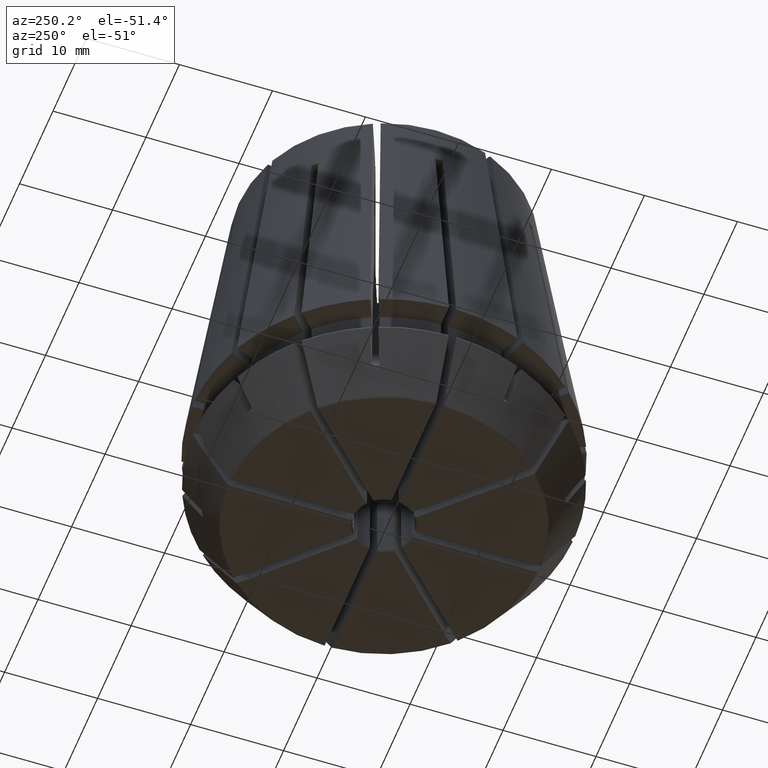
[diagram: clean part render]
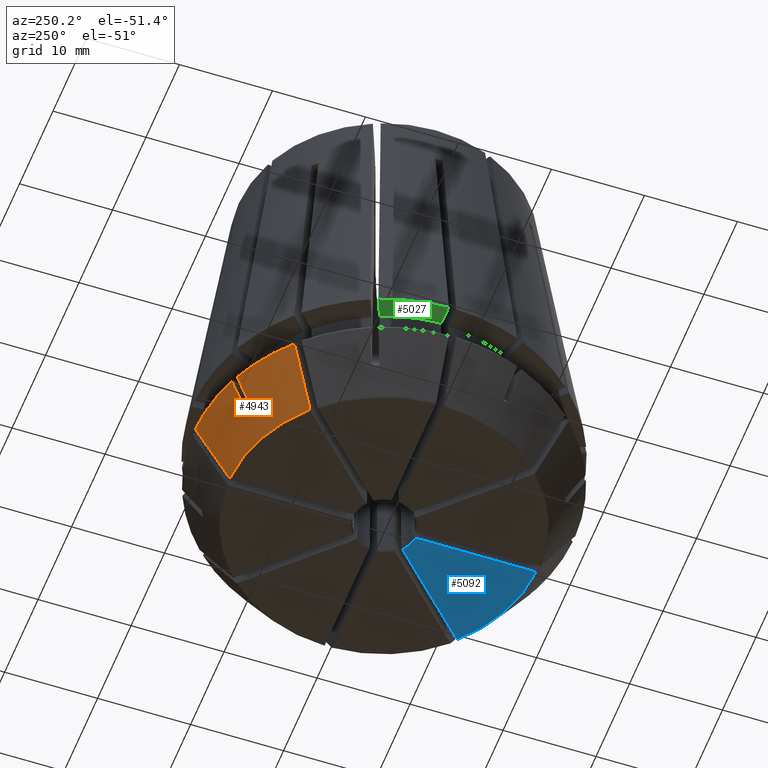
[diagram: same view with three faces highlighted in distinct colors, each labeled with its STEP entity id]
A machine part, auxiliary view with three faces highlighted in distinct colors.
Their STEP definitions:

[orange] entity #4943 — the highlighted conical surface has half-angle 30 deg.
#773=CONICAL_SURFACE('',#5318,20.4464101615138,0.523598775598298);
#902=CIRCLE('',#5319,20.4464101615138);
#903=CIRCLE('',#5320,16.7307168993214);
#904=CIRCLE('',#5321,20.4464101615138);
#905=CIRCLE('',#5322,17.4902963361193);
#1280=ORIENTED_EDGE('',*,*,#2882,.F.);
#1281=ORIENTED_EDGE('',*,*,#2883,.F.);
#1282=ORIENTED_EDGE('',*,*,#2884,.T.);
#1283=ORIENTED_EDGE('',*,*,#2885,.T.);
#1284=ORIENTED_EDGE('',*,*,#2886,.F.);
#1285=ORIENTED_EDGE('',*,*,#2887,.F.);
#1286=ORIENTED_EDGE('',*,*,#2888,.T.);
#1287=ORIENTED_EDGE('',*,*,#2889,.T.);
#2882=EDGE_CURVE('',#3676,#3677,#4110,.T.);
#2883=EDGE_CURVE('',#3678,#3676,#902,.T.);
#2884=EDGE_CURVE('',#3678,#3679,#4111,.T.);
#2885=EDGE_CURVE('',#3679,#3680,#903,.T.);
#2886=EDGE_CURVE('',#3681,#3680,#4112,.T.);
#2887=EDGE_CURVE('',#3682,#3681,#904,.T.);
#2888=EDGE_CURVE('',#3682,#3683,#4113,.T.);
#2889=EDGE_CURVE('',#3683,#3677,#905,.T.);
#3676=VERTEX_POINT('',#7680);
#3677=VERTEX_POINT('',#7681);
#3678=VERTEX_POINT('',#7683);
#3679=VERTEX_POINT('',#7688);
#3680=VERTEX_POINT('',#7690);
#3681=VERTEX_POINT('',#7695);
#3682=VERTEX_POINT('',#7697);
#3683=VERTEX_POINT('',#7702);
#4110=B_SPLINE_CURVE_WITH_KNOTS('',3,(#7676,#7677,#7678,#7679),
 .UNSPECIFIED.,.F.,.F.,(4,4),(2.30951159840683E-7,0.00410730167754539),
 .UNSPECIFIED.);
#4111=B_SPLINE_CURVE_WITH_KNOTS('',3,(#7684,#7685,#7686,#7687),
 .UNSPECIFIED.,.F.,.F.,(4,4),(0.0202823541054414,0.0277141753030989),
 .UNSPECIFIED.);
#4112=B_SPLINE_CURVE_WITH_KNOTS('',3,(#7691,#7692,#7693,#7694),
 .UNSPECIFIED.,.F.,.F.,(4,4),(2.30951159842324E-7,0.00743205214663291),
 .UNSPECIFIED.);
#4113=B_SPLINE_CURVE_WITH_KNOTS('',3,(#7698,#7699,#7700,#7701),
 .UNSPECIFIED.,.F.,.F.,(4,4),(2.30951159835909E-7,0.00410730167754542),
 .UNSPECIFIED.);
#4327=EDGE_LOOP('',(#1280,#1281,#1282,#1283,#1284,#1285,#1286,#1287));
#4599=FACE_BOUND('',#4327,.T.);
#4943=ADVANCED_FACE('',(#4599),#773,.T.);
#5318=AXIS2_PLACEMENT_3D('',#7675,#6039,#6040);
#5319=AXIS2_PLACEMENT_3D('',#7682,#6041,#6042);
#5320=AXIS2_PLACEMENT_3D('',#7689,#6043,#6044);
#5321=AXIS2_PLACEMENT_3D('',#7696,#6045,#6046);
#5322=AXIS2_PLACEMENT_3D('',#7703,#6047,#6048);
#6039=DIRECTION('',(0.,0.,1.));
#6040=DIRECTION('',(1.,0.,0.));
#6041=DIRECTION('',(0.,0.,1.));
#6042=DIRECTION('',(1.,0.,0.));
#6043=DIRECTION('',(0.,0.,1.));
#6044=DIRECTION('',(1.,0.,0.));
#6045=DIRECTION('',(0.,0.,1.));
#6046=DIRECTION('',(1.,0.,0.));
#6047=DIRECTION('',(0.345585721741283,-0.834317736390489,-0.429516499884239));
#6048=DIRECTION('',(-0.185454820349281,0.387965812228631,-0.902822816587505));
#7675=CARTESIAN_POINT('',(0.,0.,6.76076951545866));
#7676=CARTESIAN_POINT('',(-7.45345315091234,19.0394780553462,6.76076951545866));
#7677=CARTESIAN_POINT('',(-7.19146422672322,18.4069808413772,5.57521705847866));
#7678=CARTESIAN_POINT('',(-6.92947157226647,17.7744746217456,4.3896702302907));
#7679=CARTESIAN_POINT('',(-6.66747378072609,17.141956000097,3.20413115424839));
#7680=CARTESIAN_POINT('',(-7.45345315091234,19.0394780553462,6.76076951545866));
#7681=CARTESIAN_POINT('',(-6.66747378072609,17.1419560000971,3.20413115424838));
#7682=CARTESIAN_POINT('',(0.,0.,6.76076951545866));
#7683=CARTESIAN_POINT('',(-0.4,20.4424971197957,6.76076951545866));
#7684=CARTESIAN_POINT('',(-0.4,20.4424971197956,6.76076951545866));
#7685=CARTESIAN_POINT('',(-0.4,19.2036824438802,4.615490198568));
#7686=CARTESIAN_POINT('',(-0.4,17.964837040327,2.47022861926208));
#7687=CARTESIAN_POINT('',(-0.4,16.7259345916796,0.324999999995274));
#7688=CARTESIAN_POINT('',(-0.4,16.7259345916796,0.324999999995282));
#7689=CARTESIAN_POINT('',(0.,0.,0.325000000000006));
#7690=CARTESIAN_POINT('',(-11.5441790589863,12.1098644839362,0.325000000000011));
#7691=CARTESIAN_POINT('',(-14.1721856253193,14.7378710502686,6.76076951545866));
#7692=CARTESIAN_POINT('',(-13.2962113677997,13.8618967927489,4.61549019967884));
#7693=CARTESIAN_POINT('',(-12.4202153842376,12.9859008091869,2.4702286255941));
#7694=CARTESIAN_POINT('',(-11.5441790589866,12.1098644839358,0.325000000000007));
#7695=CARTESIAN_POINT('',(-14.1721856253193,14.7378710502686,6.76076951545866));
#7696=CARTESIAN_POINT('',(0.,0.,6.76076951545866));
#7697=CARTESIAN_POINT('',(-8.19255677692138,18.7333313094541,6.76076951545866));
#7698=CARTESIAN_POINT('',(-8.1925567769214,18.7333313094541,6.76076951545867));
#7699=CARTESIAN_POINT('',(-7.93056785273228,18.1008340954852,5.57521705847866));
#7700=CARTESIAN_POINT('',(-7.66857519827552,17.4683278758535,4.38967023029069));
#7701=CARTESIAN_POINT('',(-7.40657740673514,16.8358092542049,3.20413115424837));
#7702=CARTESIAN_POINT('',(-7.40657740673512,16.835809254205,3.20413115424838));
#7703=CARTESIAN_POINT('',(-4.16291764186443,10.050172230043,18.9947697553738));

[blue] entity #5092 — the highlighted planar face has unit normal (0, 0, -1).
#95=PLANE('',#5616);
#361=LINE('',#9038,#657);
#380=LINE('',#9119,#676);
#657=VECTOR('',#6740,1000.);
#676=VECTOR('',#6769,1000.);
#851=CIRCLE('',#5244,16.5142105483752);
#857=CIRCLE('',#5253,3.575);
#2297=ORIENTED_EDGE('',*,*,#2788,.F.);
#2298=ORIENTED_EDGE('',*,*,#3355,.T.);
#2299=ORIENTED_EDGE('',*,*,#2797,.F.);
#2300=ORIENTED_EDGE('',*,*,#3384,.F.);
#2788=EDGE_CURVE('',#3590,#3591,#851,.T.);
#2797=EDGE_CURVE('',#3598,#3599,#857,.T.);
#3355=EDGE_CURVE('',#3590,#3599,#361,.T.);
#3384=EDGE_CURVE('',#3591,#3598,#380,.T.);
#3590=VERTEX_POINT('',#7403);
#3591=VERTEX_POINT('',#7405);
#3598=VERTEX_POINT('',#7427);
#3599=VERTEX_POINT('',#7428);
#4476=EDGE_LOOP('',(#2297,#2298,#2299,#2300));
#4748=FACE_BOUND('',#4476,.T.);
#5092=ADVANCED_FACE('',(#4748),#95,.T.);
#5244=AXIS2_PLACEMENT_3D('',#7404,#5871,#5872);
#5253=AXIS2_PLACEMENT_3D('',#7426,#5891,#5892);
#5616=AXIS2_PLACEMENT_3D('',#9298,#6893,#6894);
#5871=DIRECTION('',(0.,0.,1.));
#5872=DIRECTION('',(1.,0.,0.));
#5891=DIRECTION('',(0.,0.,-1.));
#5892=DIRECTION('',(-1.,0.,0.));
#6740=DIRECTION('',(-1.22464679914735E-16,1.,0.));
#6769=DIRECTION('',(-0.707106781186548,0.707106781186548,0.));
#6893=DIRECTION('',(0.,0.,-1.));
#6894=DIRECTION('',(-1.,0.,0.));
#7403=CARTESIAN_POINT('',(0.399999999999998,-16.5093655249397,0.200000000000003));
#7404=CARTESIAN_POINT('',(0.,0.,0.200000000000006));
#7405=CARTESIAN_POINT('',(11.3910416032976,-11.9567270282469,0.200000000000003));
#7426=CARTESIAN_POINT('',(0.,0.,0.2));
#7427=CARTESIAN_POINT('',(2.22919082631408,-2.79487625126335,0.2));
#7428=CARTESIAN_POINT('',(0.399999999999996,-3.55255189969128,0.2));
#9038=CARTESIAN_POINT('',(0.399999999999995,16.5142105483752,0.2));
#9119=CARTESIAN_POINT('',(-8.53994798666223,7.97426256171299,0.2));
#9298=CARTESIAN_POINT('',(0.,16.5142105483752,0.2));

[green] entity #5027 — the highlighted planar face has unit normal (-0, 0, 1).
#64=PLANE('',#5499);
#176=LINE('',#7830,#472);
#308=LINE('',#8676,#604);
#472=VECTOR('',#6103,1000.);
#604=VECTOR('',#6561,1000.);
#823=CIRCLE('',#5202,18.3);
#999=CIRCLE('',#5500,20.5);
#1763=ORIENTED_EDGE('',*,*,#2934,.F.);
#1764=ORIENTED_EDGE('',*,*,#2737,.T.);
#1765=ORIENTED_EDGE('',*,*,#3233,.T.);
#1766=ORIENTED_EDGE('',*,*,#3234,.F.);
#2737=EDGE_CURVE('',#3541,#3543,#823,.T.);
#2934=EDGE_CURVE('',#3541,#3720,#176,.T.);
#3233=EDGE_CURVE('',#3543,#3936,#308,.T.);
#3234=EDGE_CURVE('',#3720,#3936,#999,.T.);
#3541=VERTEX_POINT('',#7227);
#3543=VERTEX_POINT('',#7234);
#3720=VERTEX_POINT('',#7831);
#3936=VERTEX_POINT('',#8677);
#4411=EDGE_LOOP('',(#1763,#1764,#1765,#1766));
#4683=FACE_BOUND('',#4411,.T.);
#5027=ADVANCED_FACE('',(#4683),#64,.F.);
#5202=AXIS2_PLACEMENT_3D('',#7235,#5783,#5784);
#5499=AXIS2_PLACEMENT_3D('',#8675,#6559,#6560);
#5500=AXIS2_PLACEMENT_3D('',#8678,#6562,#6563);
#5783=DIRECTION('',(-2.25438335333768E-18,0.,1.));
#5784=DIRECTION('',(1.,0.,2.25438335333768E-18));
#6103=DIRECTION('',(-0.923879532511287,0.38268343236509,-2.08277863858284E-18));
#6559=DIRECTION('',(-2.25438335333768E-18,0.,1.));
#6560=DIRECTION('',(1.,0.,2.25438335333768E-18));
#6561=DIRECTION('',(-1.,-1.83697019872103E-16,-2.25438335333768E-18));
#6562=DIRECTION('',(0.,0.,1.));
#6563=DIRECTION('',(1.,0.,0.));
#7227=CARTESIAN_POINT('',(-17.0560295177535,6.63188186637234,11.3000000000005));
#7234=CARTESIAN_POINT('',(-18.295627893024,0.399999999999998,11.3000000000005));
#7235=CARTESIAN_POINT('',(-2.54745318927158E-17,0.,11.3));
#7830=CARTESIAN_POINT('',(15.4669536749109,-6.83957886086142,11.3));
#7831=CARTESIAN_POINT('',(-19.088998062655,7.47396500954846,11.3));
#8675=CARTESIAN_POINT('',(18.3,0.,11.3));
#8676=CARTESIAN_POINT('',(18.3,0.400000000000005,11.3));
#8677=CARTESIAN_POINT('',(-20.4960971894651,0.4,11.3));
#8678=CARTESIAN_POINT('',(0.,0.,11.3));